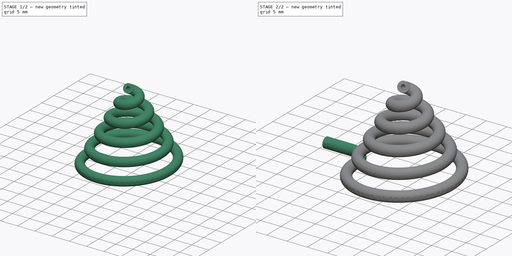
[diagram: build sequence overview — one tinted view per stage of 2, left to right]
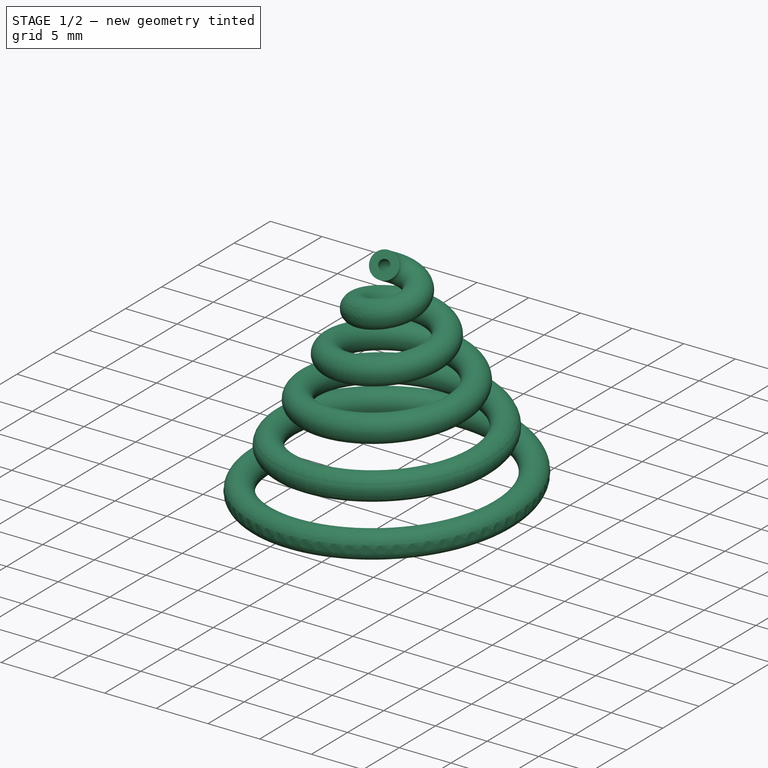
[diagram: stage 1 of 2 — iso view after this stage's code; geometry added in this stage tinted green]
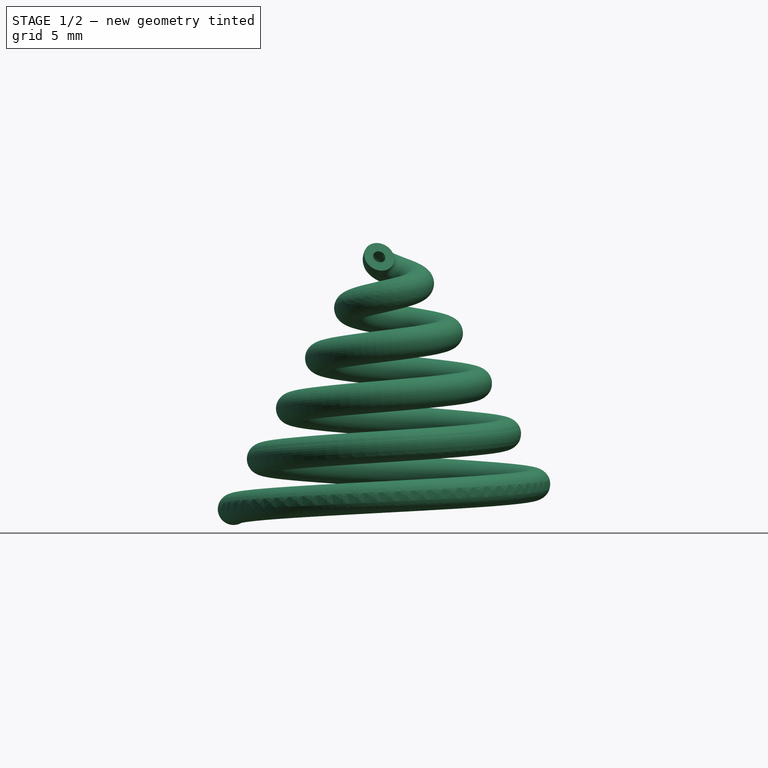
[diagram: stage 1 of 2 — front view after this stage's code; geometry added in this stage tinted green]
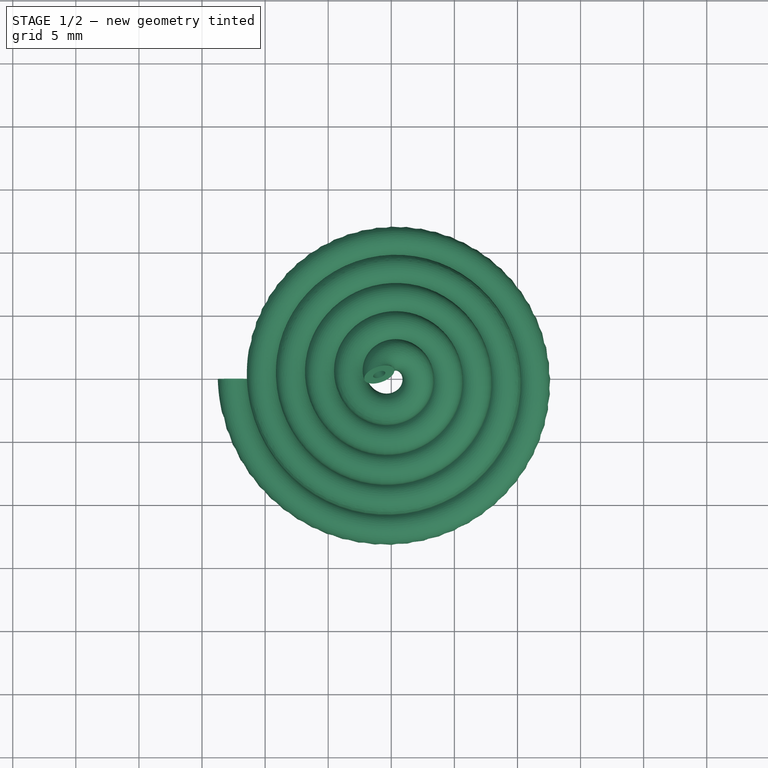
[diagram: stage 1 of 2 — top view after this stage's code; geometry added in this stage tinted green]
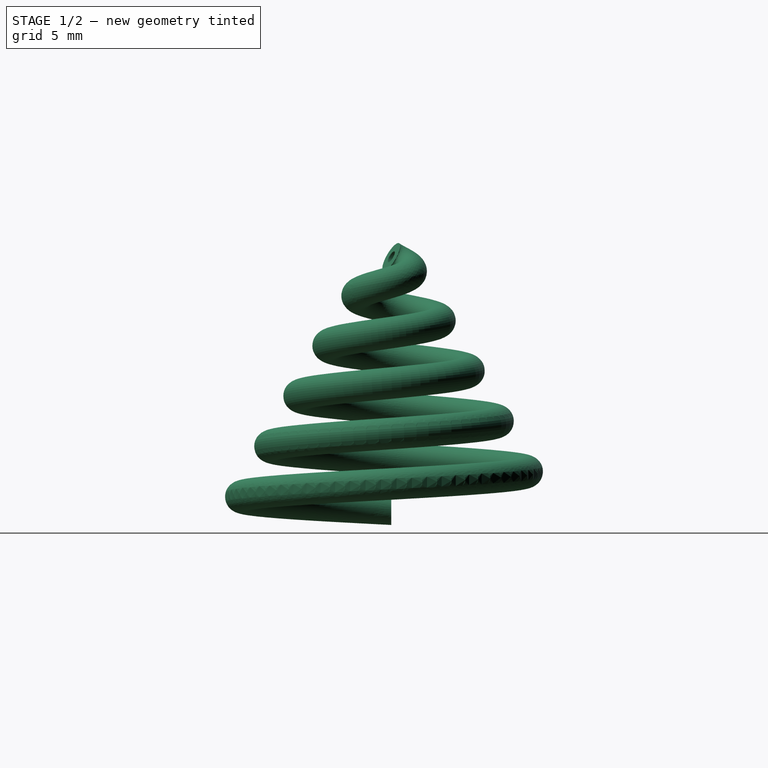
[diagram: stage 1 of 2 — right view after this stage's code; geometry added in this stage tinted green]
FCSTD DOCUMENT  (FreeCAD 0.19R24291 (Git))
Label: con_spring_plp01
License: All rights reserved
LicenseURL: http://en.wikipedia.org/wiki/All_rights_reserved
objects: Sketcher::SketchObject×3, Spreadsheet::Sheet×1, PartDesign::AdditiveHelix×1, PartDesign::AdditivePipe×1, PartDesign::Body×1
note: 8 computed .brp shape members not serialized (recipe doc carries the construction recipe); baked Part::Feature solids carry a one-line shape summary decoded from their .brp

FEATURE [Spreadsheet::Sheet] Spreadsheet
  cells = A2=con; B2=spring; C3=ring; B4=top; C4(rg_tp)=2.5; B5=botttom; C5(rg_btm)=12.5; B6=wire; C6(wire)=1.25; B7=height; C7(hgt)=20; B8=turns; C8(trn)=5
FEATURE [Sketcher::SketchObject] Sketch
  FullyConstrained = true
  MapMode = 5
  Placement = pos=(0,0,0) rot=(1,0,0;1.5708rad)
  Support = -> [XZ_Plane]
  expr: Constraints[2] = Spreadsheet.rg_btm
  expr: Constraints[1] = Spreadsheet.wire
  sketch-geometry (2):
    g0: Circle CenterX=-12.5 CenterY=0 CenterZ=0 NormalX=0 NormalY=0 NormalZ=1 AngleXU=0 Radius=1.25
    g1: Circle CenterX=-12.5 CenterY=0 CenterZ=0 NormalX=0 NormalY=0 NormalZ=1 AngleXU=0 Radius=0.5
  constraints (5):
    c: PointOnObject(g0,g-1)
    c: Radius(g0) = 1.25
    c: Distance(g0,g-1) = 12.5
    c: Coincident(g1,g0)
    c: Radius(g1) = 0.5
FEATURE [PartDesign::AdditiveHelix] AdditiveHelix
  Angle = -30
  Axis = (0,-2e-16,1)
  Base = (0,0,0)
  HasBeenEdited = true
  Height = 20
  LeftHanded = false
  Mode = 2
  Outside = false
  Pitch = 4
  Placement = pos=(0,0,0) rot=(1,0,0;1.5708rad)
  Profile = -> Sketch
  ReferenceAxis = -> Sketch [V_Axis]
  Turns = 5
  expr: Turns = Spreadsheet.trn
  expr: Height = Spreadsheet.hgt
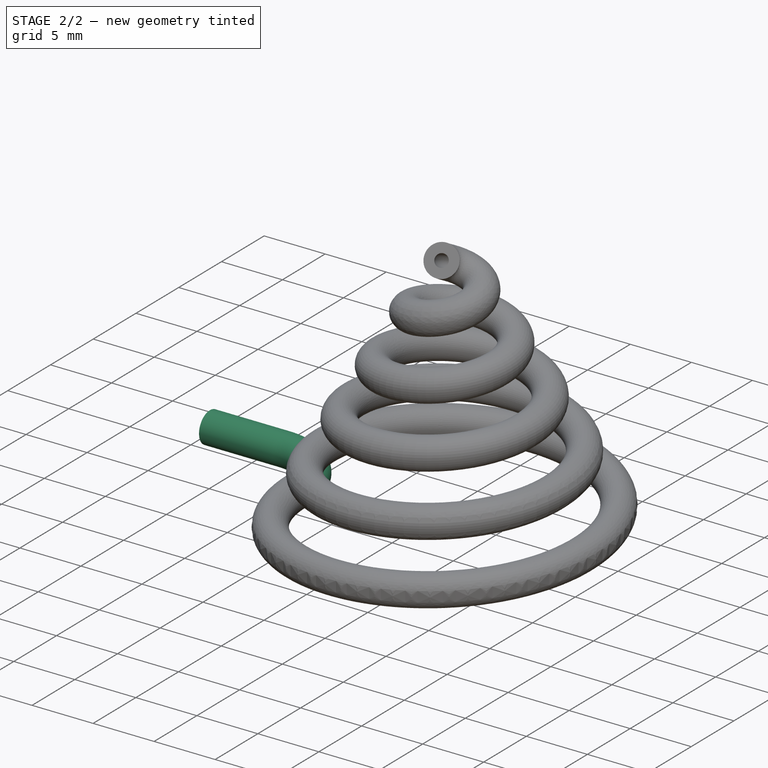
[diagram: stage 2 of 2 — iso view after this stage's code; geometry added in this stage tinted green]
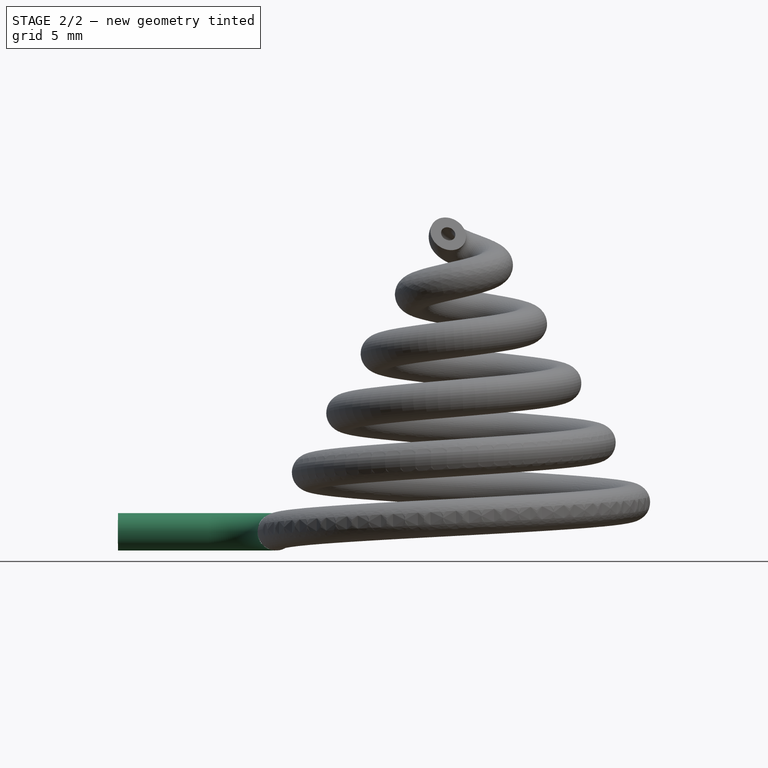
[diagram: stage 2 of 2 — front view after this stage's code; geometry added in this stage tinted green]
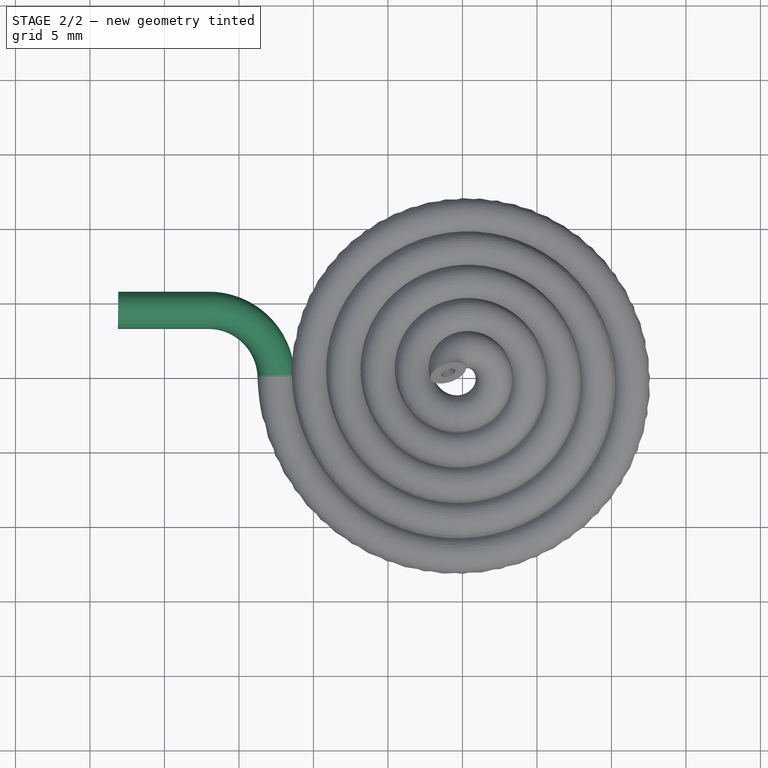
[diagram: stage 2 of 2 — top view after this stage's code; geometry added in this stage tinted green]
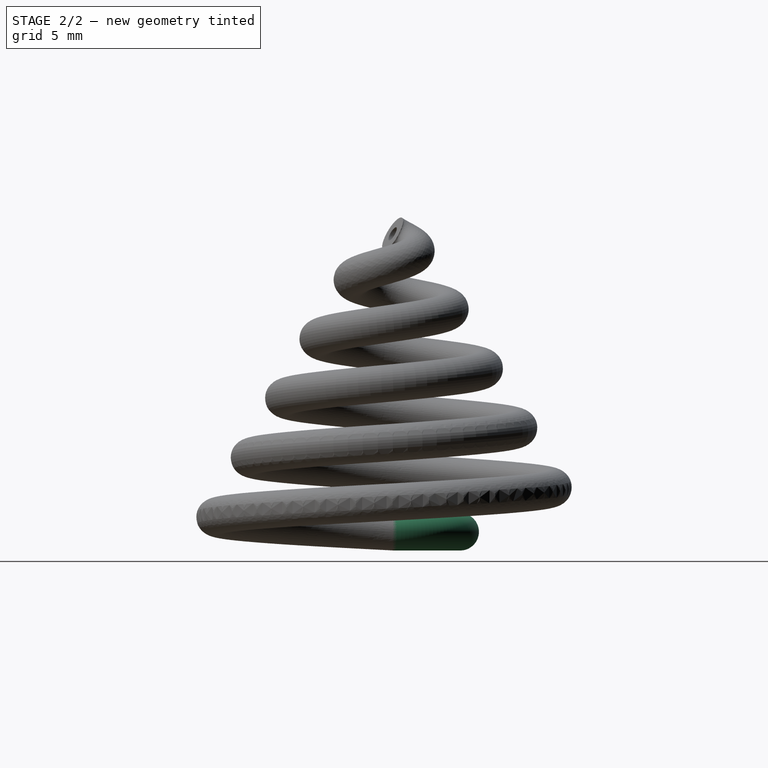
[diagram: stage 2 of 2 — right view after this stage's code; geometry added in this stage tinted green]
FEATURE [Sketcher::SketchObject] Sketch001
  FullyConstrained = false
  MapMode = 5
  Support = -> [XY_Plane]
  sketch-geometry (2):
    g0: ArcOfCircle CenterX=-17.0446 CenterY=0 CenterZ=0 NormalX=0 NormalY=0 NormalZ=1 AngleXU=0 Radius=4.43959 StartAngle=0 EndAngle=1.56181
    g1: LineSegment StartX=-17.0047 StartY=4.43941 StartZ=0 EndX=-23.1136 EndY=4.43941 EndZ=0
  constraints (4):
    c: PointOnObject(g0,g-1)
    c: PointOnObject(g0,g-1)
    c: Coincident(g1,g0)
    c: Horizontal(g1)
FEATURE [Sketcher::SketchObject] Sketch002
  FullyConstrained = false
  MapMode = 5
  Placement = pos=(0,0,0) rot=(-1,0,0;1.5708rad)
  Support = -> [AdditiveHelix]
  sketch-geometry (2):
    g0: Circle CenterX=-12.5061 CenterY=0 CenterZ=0 NormalX=0 NormalY=0 NormalZ=1 AngleXU=0 Radius=1.25366
    g1: Circle CenterX=-12.5061 CenterY=0 CenterZ=0 NormalX=0 NormalY=0 NormalZ=1 AngleXU=0 Radius=0.500533
  constraints (2):
    c: PointOnObject(g0,g-1)
    c: Coincident(g1,g0)
FEATURE [PartDesign::AdditivePipe] AdditivePipe
  AuxilleryCurvelinear = true
  AuxillerySpineTangent = false
  BaseFeature = -> AdditiveHelix
  Binormal = (0,0,0)
  Mode = 0
  Placement = pos=(0,0,0) rot=(1,0,0;1.5708rad)
  Profile = -> Sketch002
  Spine = -> Sketch001 [Edge1,Edge2]
  SpineTangent = false
  Transformation = 0
  Transition = 0
FEATURE [PartDesign::Body] Body
  Group = -> [Sketch,AdditiveHelix,Sketch001,Sketch002,AdditivePipe]
  Origin = -> Origin
  Tip = -> AdditivePipe
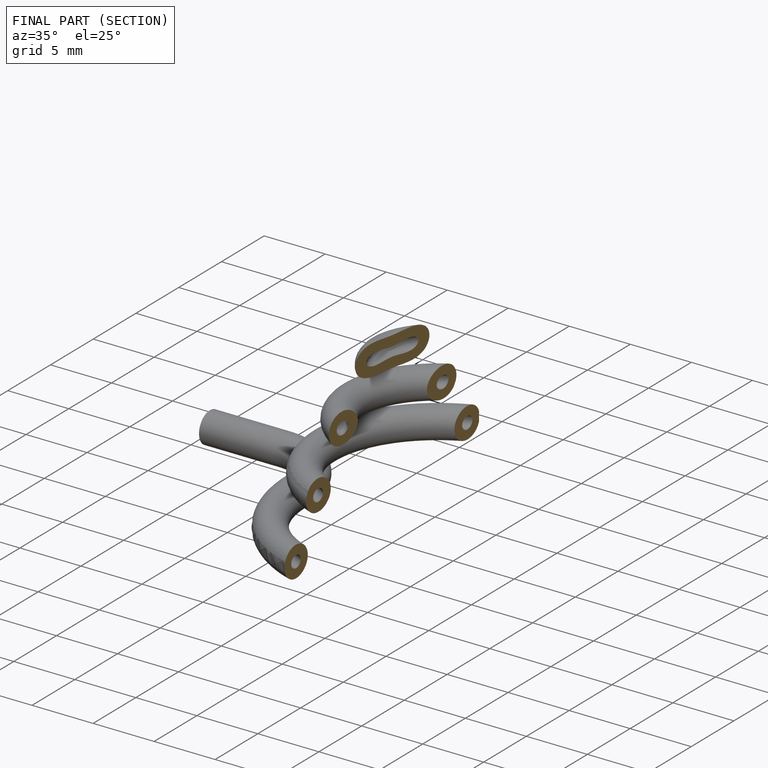
[diagram: finished part — half-section view (interior)]
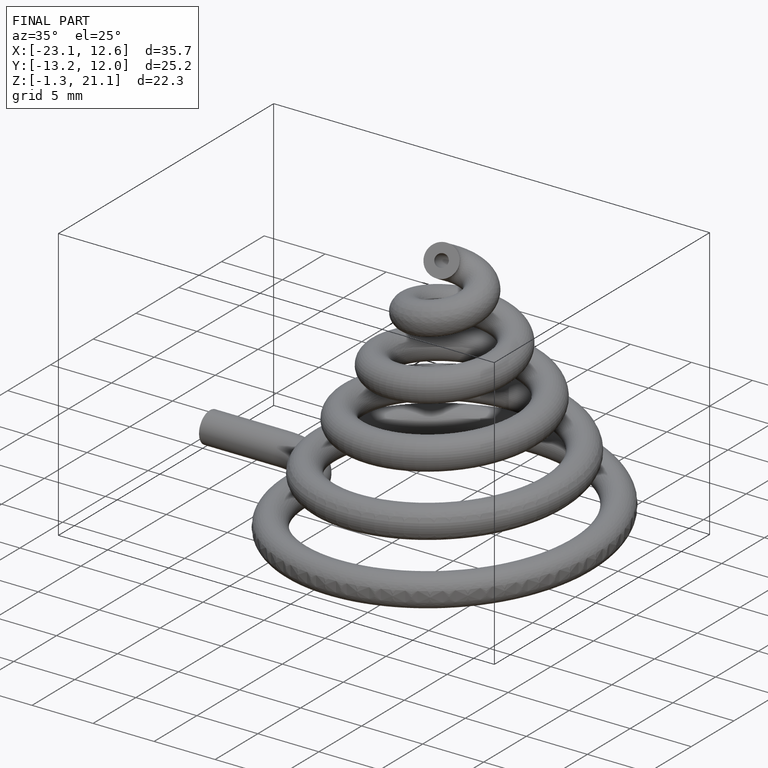
[diagram: finished part — iso view with bounding-box wireframe]
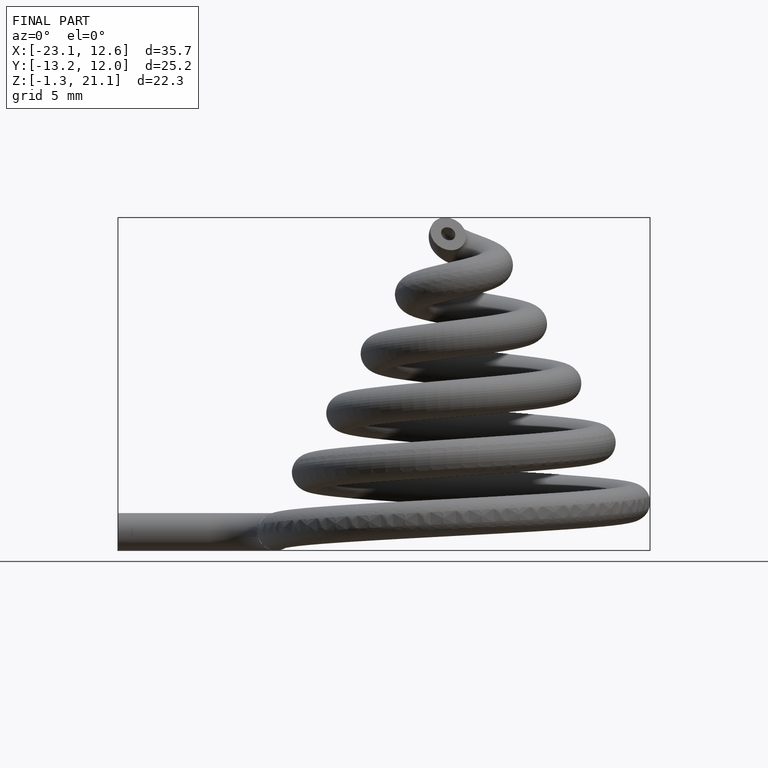
[diagram: finished part — front view with bounding-box wireframe]
